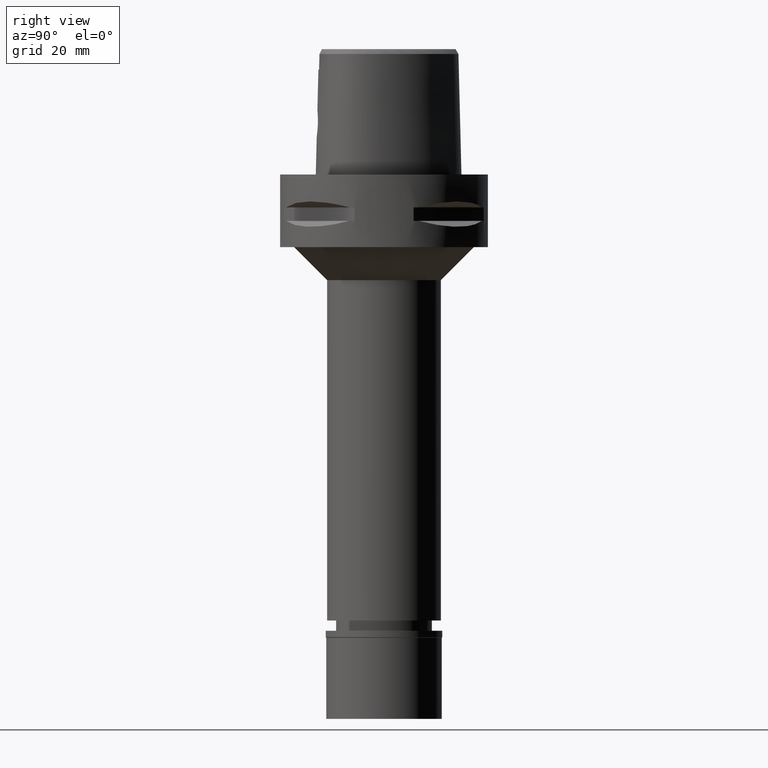
[diagram: clean part render]
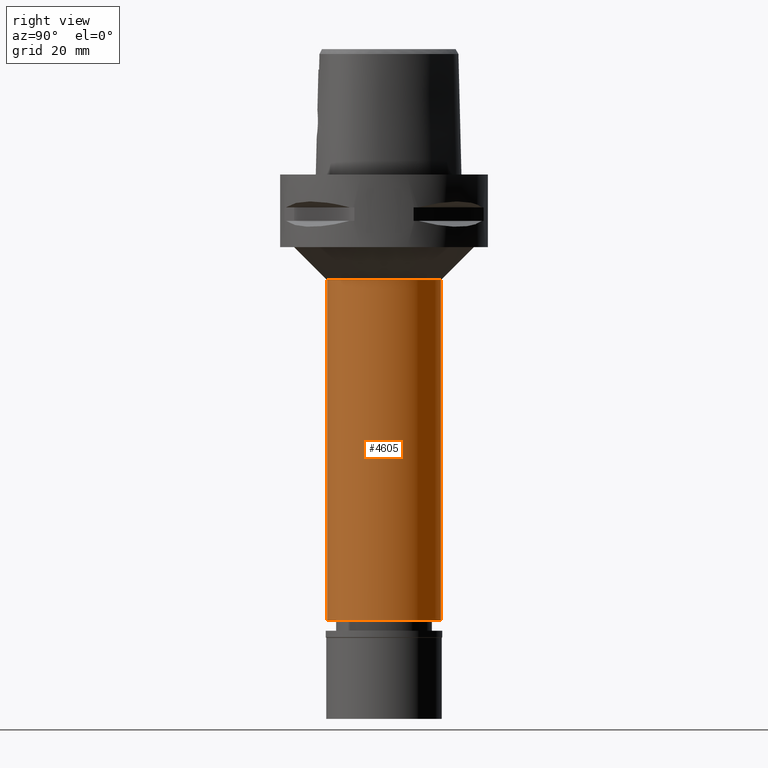
[diagram: same view with one face highlighted and labeled with its STEP entity id]
A machine part, right view. The second image highlights one B-rep face of the part: STEP entity #4605.
In plain terms, the highlighted cylindrical surface (partial cylindrical patch) has radius 17.25 mm, axis along (0, 0, -1).
Its self-contained STEP definition (entity closure, byte-faithful):
#7 = VERTEX_POINT ( 'NONE', #2874 ) ;
#68 = CARTESIAN_POINT ( 'NONE',  ( 0.0000000000000000000, 17.25000000000000000, -135.1999999999999886 ) ) ;
#252 = CARTESIAN_POINT ( 'NONE',  ( 0.0000000000000000000, 0.0000000000000000000, -32.00000000000000000 ) ) ;
#477 = ORIENTED_EDGE ( 'NONE', *, *, #3016, .F. ) ;
#868 = CARTESIAN_POINT ( 'NONE',  ( 0.0000000000000000000, -17.25000000000000000, -135.1999999999999886 ) ) ;
#943 = EDGE_LOOP ( 'NONE', ( #1526, #2668, #3906, #477 ) ) ;
#983 = AXIS2_PLACEMENT_3D ( 'NONE', #252, #4884, #1787 ) ;
#1134 = CYLINDRICAL_SURFACE ( 'NONE', #2712, 17.25000000000000000 ) ;
#1335 = VECTOR ( 'NONE', #2487, 1000.000000000000000 ) ;
#1526 = ORIENTED_EDGE ( 'NONE', *, *, #4959, .T. ) ;
#1568 = LINE ( 'NONE', #1918, #1335 ) ;
#1707 = EDGE_CURVE ( 'NONE', #2626, #3260, #2975, .T. ) ;
#1787 = DIRECTION ( 'NONE',  ( 0.0000000000000000000, 1.000000000000000000, 0.0000000000000000000 ) ) ;
#1918 = CARTESIAN_POINT ( 'NONE',  ( 0.0000000000000000000, -17.25000000000000000, -32.00000000000000000 ) ) ;
#1963 = FACE_OUTER_BOUND ( 'NONE', #943, .T. ) ;
#2288 = VECTOR ( 'NONE', #2478, 1000.000000000000000 ) ;
#2478 = DIRECTION ( 'NONE',  ( 0.0000000000000000000, 0.0000000000000000000, -1.000000000000000000 ) ) ;
#2487 = DIRECTION ( 'NONE',  ( 0.0000000000000000000, 0.0000000000000000000, -1.000000000000000000 ) ) ;
#2626 = VERTEX_POINT ( 'NONE', #868 ) ;
#2668 = ORIENTED_EDGE ( 'NONE', *, *, #4030, .T. ) ;
#2683 = CARTESIAN_POINT ( 'NONE',  ( 0.0000000000000000000, 1.318944602681999963E-14, 7.700000000000000178 ) ) ;
#2712 = AXIS2_PLACEMENT_3D ( 'NONE', #2683, #4309, #3545 ) ;
#2761 = CIRCLE ( 'NONE', #983, 17.25000000000000000 ) ;
#2874 = CARTESIAN_POINT ( 'NONE',  ( 0.0000000000000000000, 17.25000000000000000, -32.00000000000000000 ) ) ;
#2975 = CIRCLE ( 'NONE', #5004, 17.25000000000000000 ) ;
#3016 = EDGE_CURVE ( 'NONE', #7, #3260, #3718, .T. ) ;
#3058 = CARTESIAN_POINT ( 'NONE',  ( 0.0000000000000000000, 1.318944602681999963E-14, -135.1999999999999886 ) ) ;
#3193 = VERTEX_POINT ( 'NONE', #4298 ) ;
#3260 = VERTEX_POINT ( 'NONE', #68 ) ;
#3545 = DIRECTION ( 'NONE',  ( 0.0000000000000000000, -1.000000000000000000, 0.0000000000000000000 ) ) ;
#3693 = CARTESIAN_POINT ( 'NONE',  ( 0.0000000000000000000, 17.25000000000000000, -32.00000000000000000 ) ) ;
#3718 = LINE ( 'NONE', #3693, #2288 ) ;
#3888 = DIRECTION ( 'NONE',  ( 0.0000000000000000000, 0.0000000000000000000, 1.000000000000000000 ) ) ;
#3906 = ORIENTED_EDGE ( 'NONE', *, *, #1707, .T. ) ;
#4030 = EDGE_CURVE ( 'NONE', #3193, #2626, #1568, .T. ) ;
#4298 = CARTESIAN_POINT ( 'NONE',  ( 0.0000000000000000000, -17.25000000000000000, -32.00000000000000000 ) ) ;
#4309 = DIRECTION ( 'NONE',  ( 0.0000000000000000000, 0.0000000000000000000, -1.000000000000000000 ) ) ;
#4605 = ADVANCED_FACE ( 'NONE', ( #1963 ), #1134, .T. ) ;
#4884 = DIRECTION ( 'NONE',  ( 0.0000000000000000000, 0.0000000000000000000, -1.000000000000000000 ) ) ;
#4959 = EDGE_CURVE ( 'NONE', #7, #3193, #2761, .T. ) ;
#5000 = DIRECTION ( 'NONE',  ( 0.0000000000000000000, -1.000000000000000000, 0.0000000000000000000 ) ) ;
#5004 = AXIS2_PLACEMENT_3D ( 'NONE', #3058, #3888, #5000 ) ;